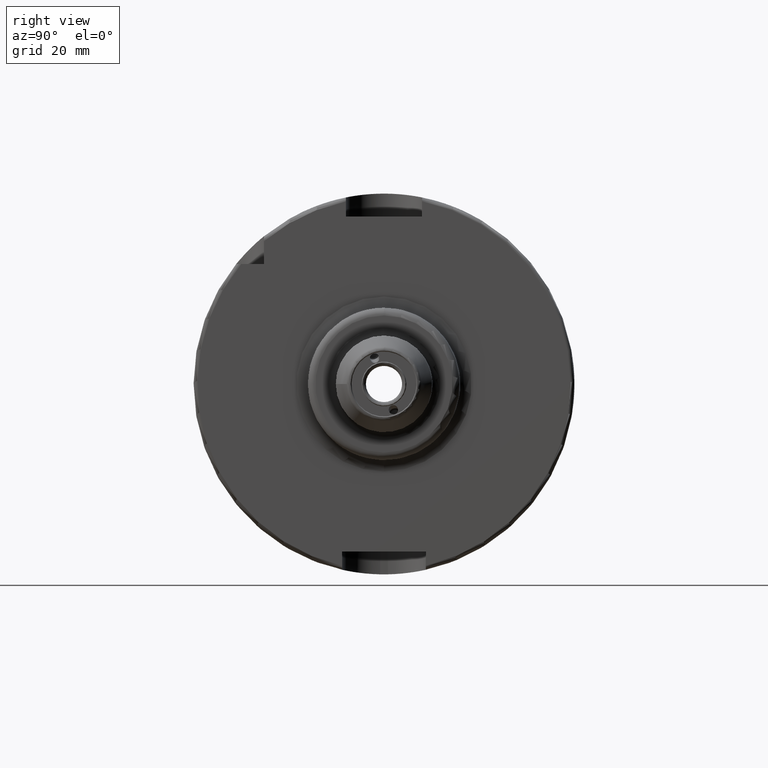
[diagram: clean part render]
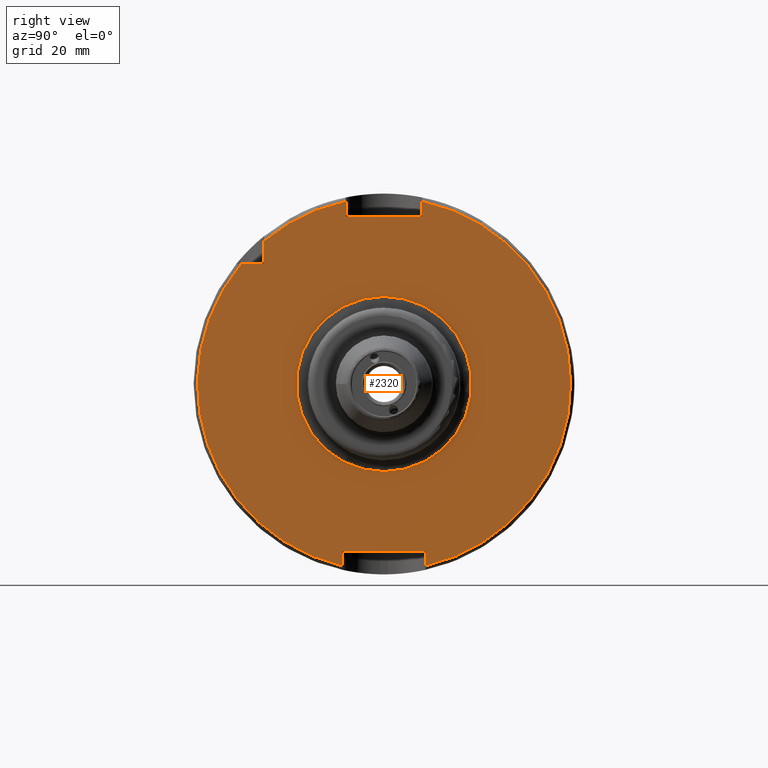
[diagram: same view with one face highlighted and labeled with its STEP entity id]
A machine part, right view. The second image highlights one B-rep face of the part: STEP entity #2320.
In plain terms, the highlighted planar face has unit normal (1, 0, 0).
Its self-contained STEP definition (entity closure, byte-faithful):
#194=LINE('',#3881,#313);
#195=LINE('',#3885,#314);
#196=LINE('',#3887,#315);
#197=LINE('',#3889,#316);
#198=LINE('',#3893,#317);
#199=LINE('',#3895,#318);
#200=LINE('',#3897,#319);
#201=LINE('',#3900,#320);
#313=VECTOR('',#2894,10.);
#314=VECTOR('',#2897,10.);
#315=VECTOR('',#2898,10.);
#316=VECTOR('',#2899,10.);
#317=VECTOR('',#2902,10.);
#318=VECTOR('',#2903,10.);
#319=VECTOR('',#2904,10.);
#320=VECTOR('',#2907,10.);
#445=FACE_BOUND('',#635,.T.);
#492=FACE_OUTER_BOUND('',#634,.T.);
#634=EDGE_LOOP('',(#1657,#1658,#1659,#1660,#1661,#1662,#1663,#1664,#1665,
#1666,#1667));
#635=EDGE_LOOP('',(#1668));
#791=CIRCLE('',#2515,23.);
#792=CIRCLE('',#2517,49.);
#793=CIRCLE('',#2518,49.);
#794=CIRCLE('',#2519,49.);
#955=VERTEX_POINT('',#3875);
#956=VERTEX_POINT('',#3879);
#957=VERTEX_POINT('',#3880);
#958=VERTEX_POINT('',#3882);
#959=VERTEX_POINT('',#3884);
#960=VERTEX_POINT('',#3886);
#961=VERTEX_POINT('',#3888);
#962=VERTEX_POINT('',#3890);
#963=VERTEX_POINT('',#3892);
#964=VERTEX_POINT('',#3894);
#965=VERTEX_POINT('',#3896);
#966=VERTEX_POINT('',#3898);
#1221=EDGE_CURVE('',#955,#955,#791,.T.);
#1222=EDGE_CURVE('',#956,#957,#194,.T.);
#1223=EDGE_CURVE('',#957,#958,#792,.T.);
#1224=EDGE_CURVE('',#958,#959,#195,.T.);
#1225=EDGE_CURVE('',#959,#960,#196,.T.);
#1226=EDGE_CURVE('',#960,#961,#197,.T.);
#1227=EDGE_CURVE('',#961,#962,#793,.T.);
#1228=EDGE_CURVE('',#962,#963,#198,.T.);
#1229=EDGE_CURVE('',#963,#964,#199,.T.);
#1230=EDGE_CURVE('',#964,#965,#200,.T.);
#1231=EDGE_CURVE('',#965,#966,#794,.T.);
#1232=EDGE_CURVE('',#966,#956,#201,.T.);
#1657=ORIENTED_EDGE('',*,*,#1222,.T.);
#1658=ORIENTED_EDGE('',*,*,#1223,.T.);
#1659=ORIENTED_EDGE('',*,*,#1224,.T.);
#1660=ORIENTED_EDGE('',*,*,#1225,.T.);
#1661=ORIENTED_EDGE('',*,*,#1226,.T.);
#1662=ORIENTED_EDGE('',*,*,#1227,.T.);
#1663=ORIENTED_EDGE('',*,*,#1228,.T.);
#1664=ORIENTED_EDGE('',*,*,#1229,.T.);
#1665=ORIENTED_EDGE('',*,*,#1230,.T.);
#1666=ORIENTED_EDGE('',*,*,#1231,.T.);
#1667=ORIENTED_EDGE('',*,*,#1232,.T.);
#1668=ORIENTED_EDGE('',*,*,#1221,.F.);
#2260=PLANE('',#2516);
#2320=ADVANCED_FACE('',(#492,#445),#2260,.T.);
#2515=AXIS2_PLACEMENT_3D('',#3877,#2890,#2891);
#2516=AXIS2_PLACEMENT_3D('',#3878,#2892,#2893);
#2517=AXIS2_PLACEMENT_3D('',#3883,#2895,#2896);
#2518=AXIS2_PLACEMENT_3D('',#3891,#2900,#2901);
#2519=AXIS2_PLACEMENT_3D('',#3899,#2905,#2906);
#2890=DIRECTION('center_axis',(1.,0.,0.));
#2891=DIRECTION('ref_axis',(0.,-1.,-1.22464679914735E-16));
#2892=DIRECTION('center_axis',(1.,0.,0.));
#2893=DIRECTION('ref_axis',(0.,0.,-1.));
#2894=DIRECTION('',(0.,-1.,0.));
#2895=DIRECTION('center_axis',(1.,0.,0.));
#2896=DIRECTION('ref_axis',(0.,0.,-1.));
#2897=DIRECTION('',(0.,0.,1.));
#2898=DIRECTION('',(0.,1.,0.));
#2899=DIRECTION('',(0.,0.,-1.));
#2900=DIRECTION('center_axis',(1.,0.,0.));
#2901=DIRECTION('ref_axis',(0.,0.,-1.));
#2902=DIRECTION('',(0.,0.,-1.));
#2903=DIRECTION('',(0.,-1.,0.));
#2904=DIRECTION('',(0.,0.,1.));
#2905=DIRECTION('center_axis',(1.,0.,0.));
#2906=DIRECTION('ref_axis',(0.,0.,-1.));
#2907=DIRECTION('',(0.,0.,-1.));
#3875=CARTESIAN_POINT('',(29.,-2.81668763803891E-15,-23.));
#3877=CARTESIAN_POINT('Origin',(29.,0.,0.));
#3878=CARTESIAN_POINT('Origin',(29.,0.,0.));
#3879=CARTESIAN_POINT('',(29.,-31.5,31.5));
#3880=CARTESIAN_POINT('',(29.,-37.5333185316726,31.5));
#3881=CARTESIAN_POINT('',(29.,-18.25,31.5));
#3882=CARTESIAN_POINT('',(29.,-11.,-47.7493455452533));
#3883=CARTESIAN_POINT('Origin',(29.,0.,0.));
#3884=CARTESIAN_POINT('',(29.,-11.,-44.));
#3885=CARTESIAN_POINT('',(29.,-11.,-22.));
#3886=CARTESIAN_POINT('',(29.,11.,-44.));
#3887=CARTESIAN_POINT('',(29.,-5.55111512312578E-16,-44.));
#3888=CARTESIAN_POINT('',(29.,11.,-47.7493455452533));
#3889=CARTESIAN_POINT('',(29.,11.,-22.));
#3890=CARTESIAN_POINT('',(29.,10.,47.9687398208458));
#3891=CARTESIAN_POINT('Origin',(29.,0.,0.));
#3892=CARTESIAN_POINT('',(29.,10.,44.));
#3893=CARTESIAN_POINT('',(29.,10.,22.));
#3894=CARTESIAN_POINT('',(29.,-10.,44.));
#3895=CARTESIAN_POINT('',(29.,0.,44.));
#3896=CARTESIAN_POINT('',(29.,-10.,47.9687398208458));
#3897=CARTESIAN_POINT('',(29.,-10.,22.));
#3898=CARTESIAN_POINT('',(29.,-31.5,37.5333185316726));
#3899=CARTESIAN_POINT('Origin',(29.,0.,0.));
#3900=CARTESIAN_POINT('',(29.,-31.5,15.75));